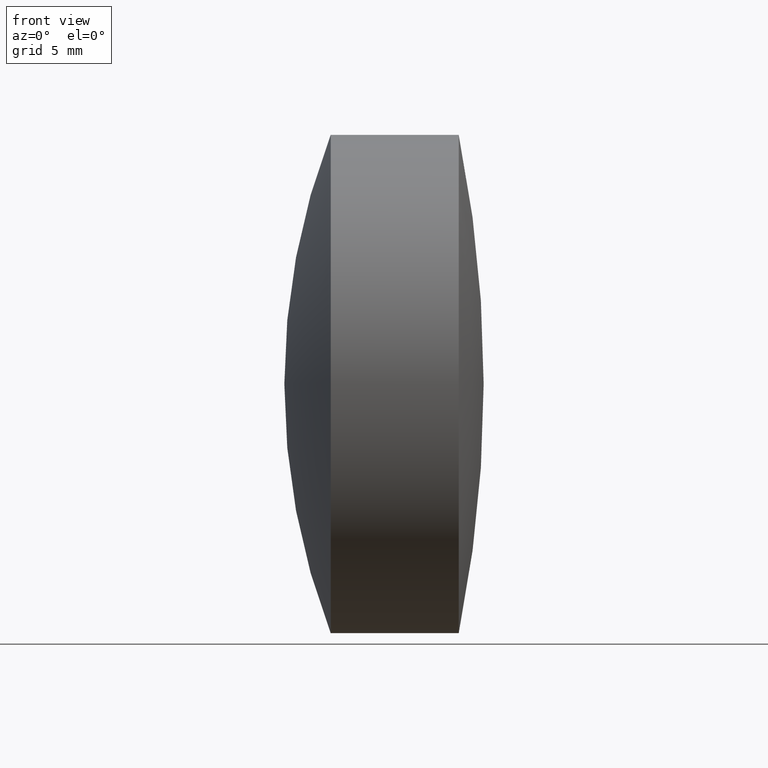
[diagram: clean part render]
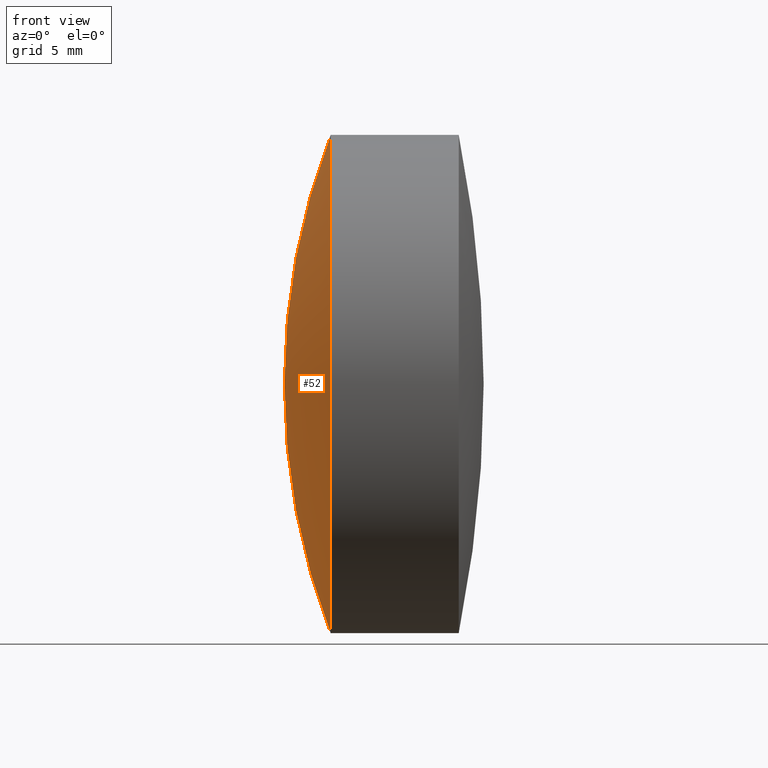
[diagram: same view with one face highlighted and labeled with its STEP entity id]
A machine part, front view. The second image highlights one B-rep face of the part: STEP entity #52.
In plain terms, the highlighted spherical surface has radius 41.69 mm.
Its self-contained STEP definition (entity closure, byte-faithful):
#7 = DIRECTION ( 'NONE',  ( -1.000000000000000000, -0.0000000000000000000, -0.0000000000000000000 ) ) ;
#8 = DIRECTION ( 'NONE',  ( 0.0000000000000000000, 1.000000000000000000, -0.0000000000000000000 ) ) ;
#19 = CARTESIAN_POINT ( 'NONE',  ( 52.79869803095530000, 0.0000000000000000000, 1.064787006880972700E-016 ) ) ;
#25 = AXIS2_PLACEMENT_3D ( 'NONE', #19, #200, #117 ) ;
#31 = DIRECTION ( 'NONE',  ( 0.0000000000000000000, 0.0000000000000000000, 1.000000000000000000 ) ) ;
#36 = CARTESIAN_POINT ( 'NONE',  ( 52.79869803095530000, 0.0000000000000000000, 1.064787006880972700E-016 ) ) ;
#44 = EDGE_CURVE ( 'NONE', #98, #75, #53, .T. ) ;
#46 = FACE_OUTER_BOUND ( 'NONE', #83, .T. ) ;
#52 = ADVANCED_FACE ( 'NONE', ( #46 ), #309, .T. ) ;
#53 = CIRCLE ( 'NONE', #25, 41.68999999999999800 ) ;
#56 = ORIENTED_EDGE ( 'NONE', *, *, #44, .T. ) ;
#75 = VERTEX_POINT ( 'NONE', #329 ) ;
#83 = EDGE_LOOP ( 'NONE', ( #144, #56, #244 ) ) ;
#87 = CIRCLE ( 'NONE', #277, 14.99999999999999600 ) ;
#96 = CIRCLE ( 'NONE', #240, 41.68999999999999800 ) ;
#98 = VERTEX_POINT ( 'NONE', #192 ) ;
#101 = EDGE_CURVE ( 'NONE', #199, #98, #87, .T. ) ;
#116 = CARTESIAN_POINT ( 'NONE',  ( 13.90067623035469100, 0.0000000000000000000, 0.0000000000000000000 ) ) ;
#117 = DIRECTION ( 'NONE',  ( 0.0000000000000000000, 1.224646799147353200E-016, -1.000000000000000000 ) ) ;
#144 = ORIENTED_EDGE ( 'NONE', *, *, #101, .T. ) ;
#164 = CARTESIAN_POINT ( 'NONE',  ( 13.90067623035469200, 0.0000000000000000000, -14.99999999999999800 ) ) ;
#175 = DIRECTION ( 'NONE',  ( 0.0000000000000000000, 0.0000000000000000000, 1.000000000000000000 ) ) ;
#192 = CARTESIAN_POINT ( 'NONE',  ( 13.90067623035469200, -1.836970198721029600E-015, 14.99999999999999800 ) ) ;
#199 = VERTEX_POINT ( 'NONE', #164 ) ;
#200 = DIRECTION ( 'NONE',  ( 0.0000000000000000000, -1.000000000000000000, -1.224646799147353200E-016 ) ) ;
#219 = AXIS2_PLACEMENT_3D ( 'NONE', #36, #337, #254 ) ;
#240 = AXIS2_PLACEMENT_3D ( 'NONE', #333, #8, #175 ) ;
#244 = ORIENTED_EDGE ( 'NONE', *, *, #335, .F. ) ;
#254 = DIRECTION ( 'NONE',  ( 0.0000000000000000000, 0.0000000000000000000, -1.000000000000000000 ) ) ;
#277 = AXIS2_PLACEMENT_3D ( 'NONE', #116, #7, #31 ) ;
#309 = SPHERICAL_SURFACE ( 'NONE', #219, 41.68999999999999800 ) ;
#329 = CARTESIAN_POINT ( 'NONE',  ( 11.10869803095530100, 0.0000000000000000000, -2.446297552134560200E-015 ) ) ;
#333 = CARTESIAN_POINT ( 'NONE',  ( 52.79869803095530000, 0.0000000000000000000, 1.064787006880972700E-016 ) ) ;
#335 = EDGE_CURVE ( 'NONE', #199, #75, #96, .T. ) ;
#337 = DIRECTION ( 'NONE',  ( -0.0000000000000000000, -1.000000000000000000, -0.0000000000000000000 ) ) ;